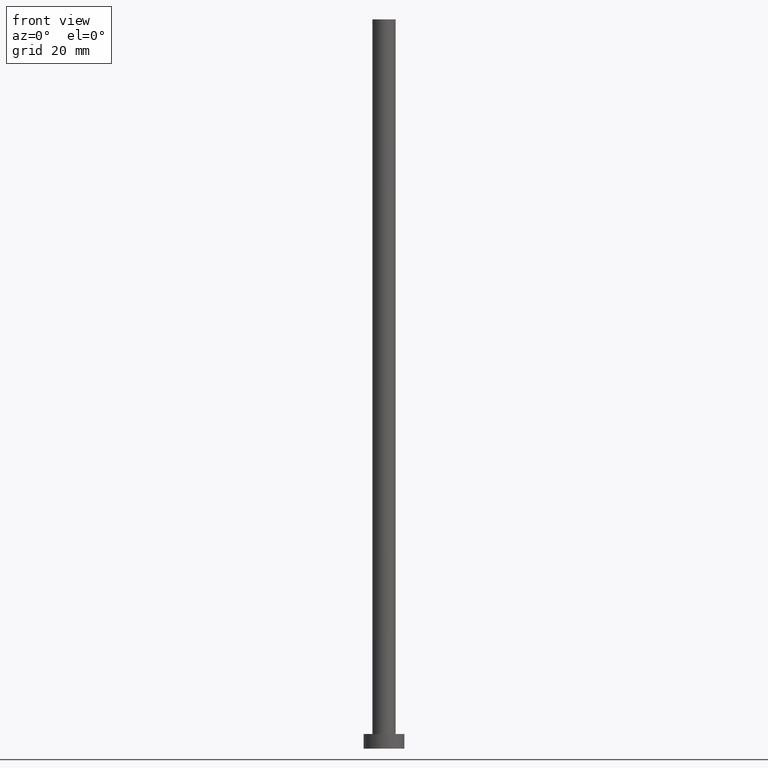
[diagram: clean part render]
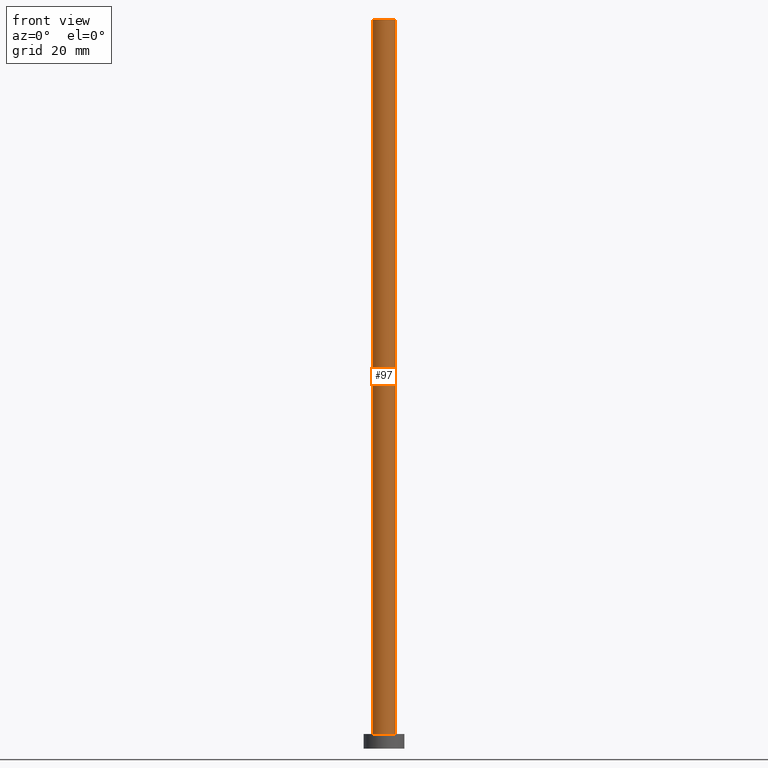
[diagram: same view with one face highlighted and labeled with its STEP entity id]
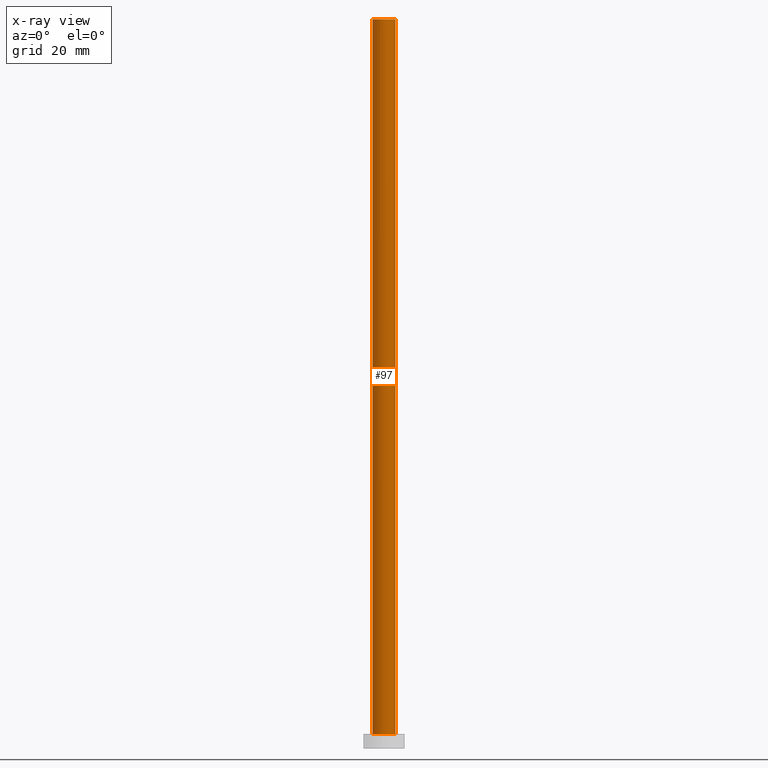
[diagram: x-ray of the same camera — body ghosted, the highlighted face saturated]
A machine part, front view. The second image highlights one B-rep face of the part: STEP entity #97.
The next image is the same camera in x-ray: the body ghosted, the highlighted face saturated — about 0% of this face is hidden behind the body in this view.
In plain terms, the highlighted cylindrical surface (edge-blend (fillet) strip) has radius 4 mm, axis along (-0, -0, -1).
Its self-contained STEP definition (entity closure, byte-faithful):
#3 = CIRCLE ( 'NONE', #243, 4.000000000000000000 ) ;
#4 = ORIENTED_EDGE ( 'NONE', *, *, #58, .T. ) ;
#5 = DIRECTION ( 'NONE',  ( -1.000000000000000000, 0.000000000000000000, 0.000000000000000000 ) ) ;
#8 = VERTEX_POINT ( 'NONE', #160 ) ;
#19 = CIRCLE ( 'NONE', #39, 4.000000000000000000 ) ;
#23 = FACE_OUTER_BOUND ( 'NONE', #59, .T. ) ;
#33 = LINE ( 'NONE', #71, #210 ) ;
#34 = CARTESIAN_POINT ( 'NONE',  ( -4.000000000000000000, 0.000000000000000000, 5.000000000000000000 ) ) ;
#39 = AXIS2_PLACEMENT_3D ( 'NONE', #125, #236, #142 ) ;
#45 = ORIENTED_EDGE ( 'NONE', *, *, #79, .F. ) ;
#48 = EDGE_CURVE ( 'NONE', #8, #112, #244, .T. ) ;
#57 = VERTEX_POINT ( 'NONE', #67 ) ;
#58 = EDGE_CURVE ( 'NONE', #112, #57, #3, .T. ) ;
#59 = EDGE_LOOP ( 'NONE', ( #110, #45, #87, #4 ) ) ;
#61 = VERTEX_POINT ( 'NONE', #229 ) ;
#65 = CARTESIAN_POINT ( 'NONE',  ( -4.000000000000000000, 0.000000000000000000, 250.0000000000000000 ) ) ;
#67 = CARTESIAN_POINT ( 'NONE',  ( 4.000000000000000000, 4.898587196589412829E-16, 5.000000000000000000 ) ) ;
#71 = CARTESIAN_POINT ( 'NONE',  ( 4.000000000000000000, 4.898587196589412829E-16, 250.0000000000000000 ) ) ;
#74 = EDGE_CURVE ( 'NONE', #61, #57, #33, .T. ) ;
#79 = EDGE_CURVE ( 'NONE', #8, #61, #19, .T. ) ;
#85 = CARTESIAN_POINT ( 'NONE',  ( 0.000000000000000000, 0.000000000000000000, 250.0000000000000000 ) ) ;
#87 = ORIENTED_EDGE ( 'NONE', *, *, #48, .T. ) ;
#97 = ADVANCED_FACE ( 'NONE', ( #23 ), #194, .T. ) ;
#108 = DIRECTION ( 'NONE',  ( -0.000000000000000000, -0.000000000000000000, -1.000000000000000000 ) ) ;
#110 = ORIENTED_EDGE ( 'NONE', *, *, #74, .F. ) ;
#112 = VERTEX_POINT ( 'NONE', #34 ) ;
#115 = DIRECTION ( 'NONE',  ( 1.000000000000000000, 0.000000000000000000, 0.000000000000000000 ) ) ;
#125 = CARTESIAN_POINT ( 'NONE',  ( 0.000000000000000000, 0.000000000000000000, 250.0000000000000000 ) ) ;
#133 = DIRECTION ( 'NONE',  ( 0.000000000000000000, 0.000000000000000000, 1.000000000000000000 ) ) ;
#142 = DIRECTION ( 'NONE',  ( 1.000000000000000000, 0.000000000000000000, 0.000000000000000000 ) ) ;
#145 = DIRECTION ( 'NONE',  ( -0.000000000000000000, -0.000000000000000000, -1.000000000000000000 ) ) ;
#150 = DIRECTION ( 'NONE',  ( -0.000000000000000000, -0.000000000000000000, -1.000000000000000000 ) ) ;
#160 = CARTESIAN_POINT ( 'NONE',  ( -4.000000000000000000, 0.000000000000000000, 250.0000000000000000 ) ) ;
#187 = VECTOR ( 'NONE', #145, 1000.000000000000000 ) ;
#190 = AXIS2_PLACEMENT_3D ( 'NONE', #85, #108, #5 ) ;
#194 = CYLINDRICAL_SURFACE ( 'NONE', #190, 4.000000000000000000 ) ;
#209 = CARTESIAN_POINT ( 'NONE',  ( 0.000000000000000000, 0.000000000000000000, 5.000000000000000000 ) ) ;
#210 = VECTOR ( 'NONE', #150, 1000.000000000000000 ) ;
#229 = CARTESIAN_POINT ( 'NONE',  ( 4.000000000000000000, 4.898587196589412829E-16, 250.0000000000000000 ) ) ;
#236 = DIRECTION ( 'NONE',  ( 0.000000000000000000, 0.000000000000000000, 1.000000000000000000 ) ) ;
#243 = AXIS2_PLACEMENT_3D ( 'NONE', #209, #133, #115 ) ;
#244 = LINE ( 'NONE', #65, #187 ) ;